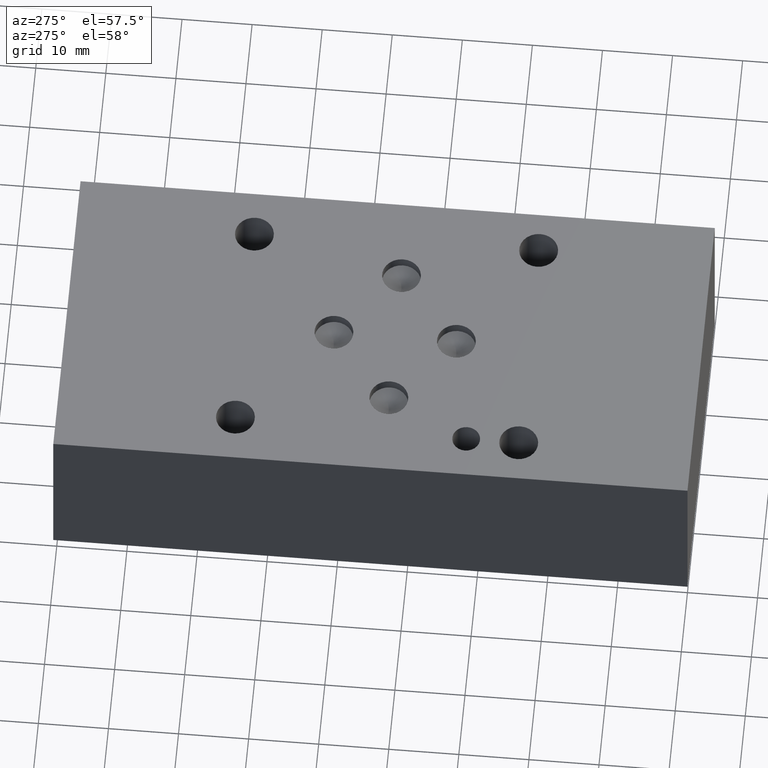
[diagram: clean part render]
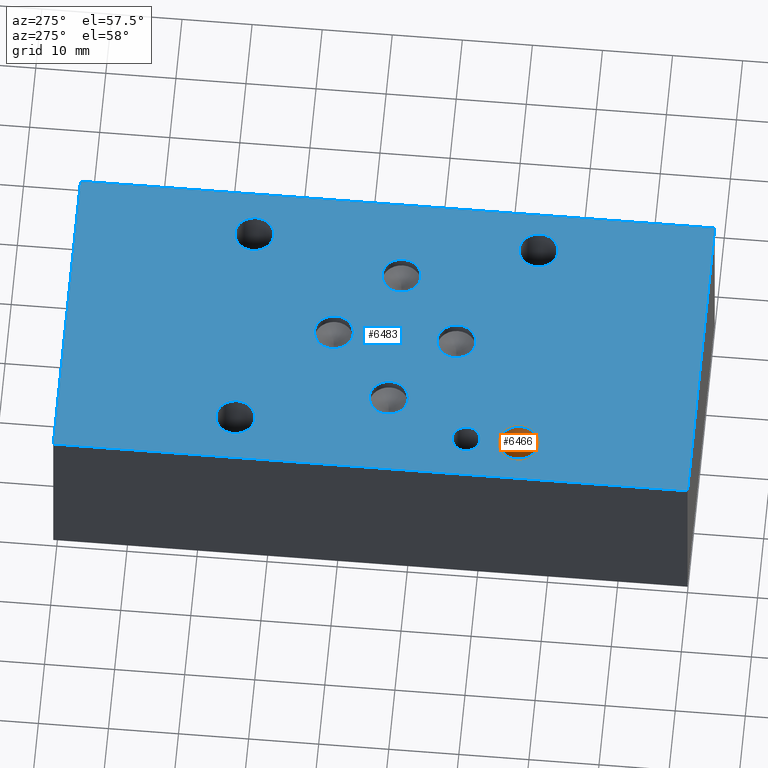
[diagram: same view with the hole feature highlighted: cylindrical wall and planar end face, labeled with their STEP entity ids]
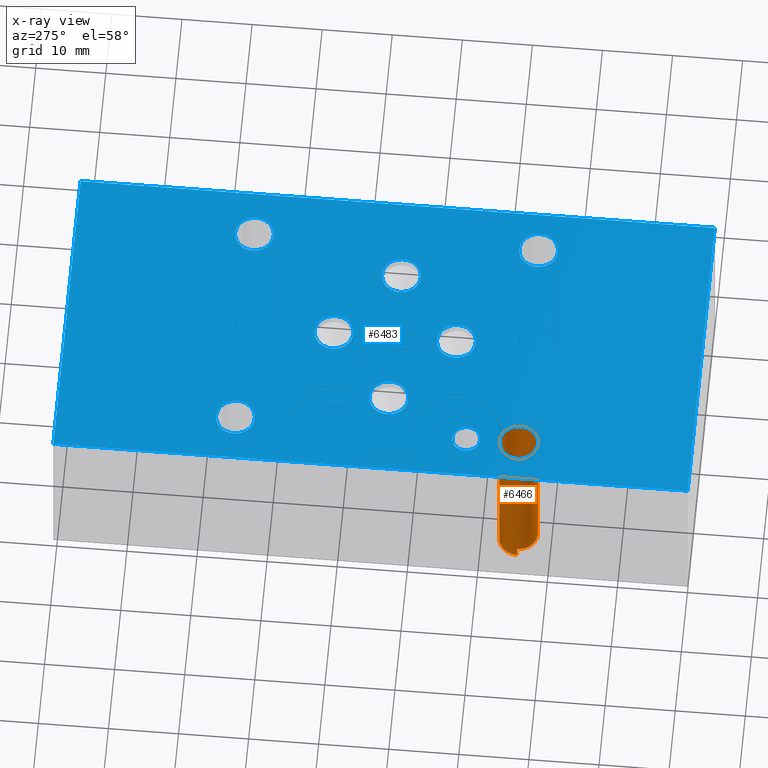
[diagram: x-ray of the same camera — body ghosted, the hole faces saturated]
A machine part, auxiliary view. The highlighted faces form one hole feature of diameter 5.5372 mm: the cylindrical wall (entity #6466, orange) and its adjacent planar end face (entity #6483, blue) — they share a circular edge in the B-rep.
The next image is the same camera in x-ray (body ghosted, the hole faces saturated) — the bore reads through the body.
Wall:
#54=CIRCLE('',#6753,2.7686);
#59=CIRCLE('',#6764,2.7686);
#63=CIRCLE('',#6770,2.7686);
#90=CYLINDRICAL_SURFACE('',#6769,2.7686);
#671=FACE_OUTER_BOUND('',#1038,.T.);
#1038=EDGE_LOOP('',(#5710,#5711,#5712,#5713,#5714,#5715,#5716,#5717));
#1707=LINE('',#10848,#2377);
#1708=LINE('',#10854,#2378);
#1717=LINE('',#10908,#2387);
#2377=VECTOR('',#7946,10.);
#2378=VECTOR('',#7951,10.);
#2387=VECTOR('',#7994,2.7686);
#2566=B_SPLINE_CURVE_WITH_KNOTS('',3,(#10857,#10858,#10859,#10860,#10861,
#10862,#10863,#10864,#10865,#10866,#10867,#10868,#10869,#10870,#10871,#10872,
#10873,#10874,#10875,#10876),.UNSPECIFIED.,.F.,.F.,(4,2,2,2,2,2,2,2,2,4),
(0.,0.104196215321337,0.208392430642673,0.312456533318024,0.416520635993375,
0.520584738668725,0.624648841344076,0.728845056665413,0.833041271986749,
0.833358708532308),.UNSPECIFIED.);
#3125=VERTEX_POINT('',#10846);
#3126=VERTEX_POINT('',#10847);
#3127=VERTEX_POINT('',#10849);
#3128=VERTEX_POINT('',#10851);
#3129=VERTEX_POINT('',#10853);
#3137=VERTEX_POINT('',#10906);
#3985=EDGE_CURVE('',#3125,#3126,#1707,.T.);
#3987=EDGE_CURVE('',#3128,#3127,#54,.T.);
#3988=EDGE_CURVE('',#3129,#3128,#1708,.T.);
#3990=EDGE_CURVE('',#3127,#3125,#2566,.T.);
#4001=EDGE_CURVE('',#3129,#3126,#59,.T.);
#4006=EDGE_CURVE('',#3137,#3137,#63,.T.);
#4007=EDGE_CURVE('',#3137,#3126,#1717,.T.);
#5710=ORIENTED_EDGE('',*,*,#4006,.F.);
#5711=ORIENTED_EDGE('',*,*,#4007,.T.);
#5712=ORIENTED_EDGE('',*,*,#4001,.F.);
#5713=ORIENTED_EDGE('',*,*,#3988,.T.);
#5714=ORIENTED_EDGE('',*,*,#3987,.T.);
#5715=ORIENTED_EDGE('',*,*,#3990,.T.);
#5716=ORIENTED_EDGE('',*,*,#3985,.T.);
#5717=ORIENTED_EDGE('',*,*,#4007,.F.);
#6466=ADVANCED_FACE('',(#671),#90,.F.);
#6753=AXIS2_PLACEMENT_3D('',#10852,#7949,#7950);
#6764=AXIS2_PLACEMENT_3D('',#10898,#7979,#7980);
#6769=AXIS2_PLACEMENT_3D('',#10905,#7990,#7991);
#6770=AXIS2_PLACEMENT_3D('',#10907,#7992,#7993);
#7946=DIRECTION('',(0.,0.,-1.));
#7949=DIRECTION('center_axis',(0.,0.,-1.));
#7950=DIRECTION('ref_axis',(1.,0.,0.));
#7951=DIRECTION('',(0.,0.,1.));
#7979=DIRECTION('center_axis',(0.,0.,1.));
#7980=DIRECTION('ref_axis',(1.,0.,0.));
#7990=DIRECTION('center_axis',(0.,0.,1.));
#7991=DIRECTION('ref_axis',(1.,0.,0.));
#7992=DIRECTION('center_axis',(0.,0.,-1.));
#7993=DIRECTION('ref_axis',(1.,0.,0.));
#7994=DIRECTION('',(0.,0.,-1.));
#10846=CARTESIAN_POINT('',(3.20040182052812,24.609425,1.59845));
#10847=CARTESIAN_POINT('',(3.20040455130474,24.611012491649,0.));
#10848=CARTESIAN_POINT('',(3.20040182052812,24.609425,0.799225000000002));
#10849=CARTESIAN_POINT('',(8.73759271788033,24.60625,1.59845420433375));
#10851=CARTESIAN_POINT('',(8.73759817947188,24.609425,1.59845));
#10852=CARTESIAN_POINT('Origin',(5.969,24.60625,1.59845));
#10853=CARTESIAN_POINT('',(8.73759544869526,24.607837508351,0.));
#10854=CARTESIAN_POINT('',(8.73759817947188,24.609425,0.799225000000002));
#10857=CARTESIAN_POINT('Ctrl Pts',(8.73759271788033,24.60625,1.59845420433375));
#10858=CARTESIAN_POINT('Ctrl Pts',(8.73679611142799,24.258930500316,1.59891412528345));
#10859=CARTESIAN_POINT('Ctrl Pts',(8.66659561451503,23.8885983368136,1.5994047385505));
#10860=CARTESIAN_POINT('Ctrl Pts',(8.38295189556874,23.2075958172206,1.60030731455487));
#10861=CARTESIAN_POINT('Ctrl Pts',(8.16950867173841,22.8969254618634,1.60071926594772));
#10862=CARTESIAN_POINT('Ctrl Pts',(7.677839069254,22.4068482320679,1.60136928022029));
#10863=CARTESIAN_POINT('Ctrl Pts',(7.36691239853523,22.1946008286456,1.60165089900502));
#10864=CARTESIAN_POINT('Ctrl Pts',(6.68593303541129,21.9131767117058,1.60202435168423));
#10865=CARTESIAN_POINT('Ctrl Pts',(6.31588034225117,21.844,1.60211617420935));
#10866=CARTESIAN_POINT('Ctrl Pts',(5.62211965774883,21.844,1.60211617420935));
#10867=CARTESIAN_POINT('Ctrl Pts',(5.25206696458871,21.9131767117058,1.60202435168422));
#10868=CARTESIAN_POINT('Ctrl Pts',(4.57108760146477,22.1946008286456,1.60165089900501));
#10869=CARTESIAN_POINT('Ctrl Pts',(4.260160930746,22.4068482320679,1.60136928022029));
#10870=CARTESIAN_POINT('Ctrl Pts',(3.76849132826159,22.8969254618634,1.60071926594772));
#10871=CARTESIAN_POINT('Ctrl Pts',(3.55504810443126,23.2075958172206,1.60030731455487));
#10872=CARTESIAN_POINT('Ctrl Pts',(3.27140438548497,23.8885983368136,1.5994047385505));
#10873=CARTESIAN_POINT('Ctrl Pts',(3.20120388857202,24.258930500316,1.59891412528345));
#10874=CARTESIAN_POINT('Ctrl Pts',(3.20040485523689,24.6073081181077,1.59845280317233));
#10875=CARTESIAN_POINT('Ctrl Pts',(3.20040303446018,24.60836645194,1.59845140172708));
#10876=CARTESIAN_POINT('Ctrl Pts',(3.20040182052812,24.609425,1.59845));
#10898=CARTESIAN_POINT('Origin',(5.969,24.6126,0.));
#10905=CARTESIAN_POINT('Origin',(5.969,24.6126,-78.5771547025596));
#10906=CARTESIAN_POINT('',(3.2004,24.6126,25.4));
#10907=CARTESIAN_POINT('Origin',(5.969,24.6126,25.4));
#10908=CARTESIAN_POINT('',(3.2004,24.6126,-78.5771547025596));
End face:
#62=CIRCLE('',#6768,2.7686);
#63=CIRCLE('',#6770,2.7686);
#64=CIRCLE('',#6772,2.7686);
#65=CIRCLE('',#6774,2.7686);
#67=CIRCLE('',#6778,2.7686);
#69=CIRCLE('',#6782,2.7686);
#71=CIRCLE('',#6786,2.7686);
#73=CIRCLE('',#6790,2.7686);
#75=CIRCLE('',#6794,1.9812);
#135=FACE_BOUND('',#1056,.T.);
#136=FACE_BOUND('',#1057,.T.);
#137=FACE_BOUND('',#1058,.T.);
#138=FACE_BOUND('',#1059,.T.);
#139=FACE_BOUND('',#1060,.T.);
#140=FACE_BOUND('',#1061,.T.);
#141=FACE_BOUND('',#1062,.T.);
#142=FACE_BOUND('',#1063,.T.);
#143=FACE_BOUND('',#1064,.T.);
#358=PLANE('',#6799);
#688=FACE_OUTER_BOUND('',#1055,.T.);
#1055=EDGE_LOOP('',(#5784,#5785,#5786,#5787));
#1056=EDGE_LOOP('',(#5788));
#1057=EDGE_LOOP('',(#5789));
#1058=EDGE_LOOP('',(#5790));
#1059=EDGE_LOOP('',(#5791));
#1060=EDGE_LOOP('',(#5792));
#1061=EDGE_LOOP('',(#5793));
#1062=EDGE_LOOP('',(#5794));
#1063=EDGE_LOOP('',(#5795));
#1064=EDGE_LOOP('',(#5796));
#1312=LINE('',#9783,#1982);
#1731=LINE('',#10966,#2401);
#1733=LINE('',#10969,#2403);
#1734=LINE('',#10972,#2404);
#1982=VECTOR('',#7183,10.);
#2401=VECTOR('',#8058,10.);
#2403=VECTOR('',#8062,10.);
#2404=VECTOR('',#8067,10.);
#2827=VERTEX_POINT('',#9780);
#2828=VERTEX_POINT('',#9782);
#3136=VERTEX_POINT('',#10902);
#3137=VERTEX_POINT('',#10906);
#3138=VERTEX_POINT('',#10910);
#3139=VERTEX_POINT('',#10914);
#3142=VERTEX_POINT('',#10923);
#3145=VERTEX_POINT('',#10932);
#3148=VERTEX_POINT('',#10941);
#3151=VERTEX_POINT('',#10950);
#3154=VERTEX_POINT('',#10959);
#3155=VERTEX_POINT('',#10963);
#3156=VERTEX_POINT('',#10965);
#3546=EDGE_CURVE('',#2828,#2827,#1312,.T.);
#4004=EDGE_CURVE('',#3136,#3136,#62,.T.);
#4006=EDGE_CURVE('',#3137,#3137,#63,.T.);
#4008=EDGE_CURVE('',#3138,#3138,#64,.T.);
#4010=EDGE_CURVE('',#3139,#3139,#65,.T.);
#4014=EDGE_CURVE('',#3142,#3142,#67,.T.);
#4018=EDGE_CURVE('',#3145,#3145,#69,.T.);
#4022=EDGE_CURVE('',#3148,#3148,#71,.T.);
#4026=EDGE_CURVE('',#3151,#3151,#73,.T.);
#4030=EDGE_CURVE('',#3154,#3154,#75,.T.);
#4033=EDGE_CURVE('',#3156,#3155,#1731,.T.);
#4035=EDGE_CURVE('',#2827,#3156,#1733,.T.);
#4036=EDGE_CURVE('',#3155,#2828,#1734,.T.);
#5784=ORIENTED_EDGE('',*,*,#4036,.T.);
#5785=ORIENTED_EDGE('',*,*,#3546,.T.);
#5786=ORIENTED_EDGE('',*,*,#4035,.T.);
#5787=ORIENTED_EDGE('',*,*,#4033,.T.);
#5788=ORIENTED_EDGE('',*,*,#4004,.T.);
#5789=ORIENTED_EDGE('',*,*,#4006,.T.);
#5790=ORIENTED_EDGE('',*,*,#4008,.T.);
#5791=ORIENTED_EDGE('',*,*,#4010,.T.);
#5792=ORIENTED_EDGE('',*,*,#4014,.T.);
#5793=ORIENTED_EDGE('',*,*,#4018,.T.);
#5794=ORIENTED_EDGE('',*,*,#4022,.T.);
#5795=ORIENTED_EDGE('',*,*,#4026,.T.);
#5796=ORIENTED_EDGE('',*,*,#4030,.T.);
#6483=ADVANCED_FACE('',(#688,#135,#136,#137,#138,#139,#140,#141,#142,#143),
#358,.T.);
#6768=AXIS2_PLACEMENT_3D('',#10903,#7987,#7988);
#6770=AXIS2_PLACEMENT_3D('',#10907,#7992,#7993);
#6772=AXIS2_PLACEMENT_3D('',#10911,#7997,#7998);
#6774=AXIS2_PLACEMENT_3D('',#10915,#8002,#8003);
#6778=AXIS2_PLACEMENT_3D('',#10924,#8012,#8013);
#6782=AXIS2_PLACEMENT_3D('',#10933,#8022,#8023);
#6786=AXIS2_PLACEMENT_3D('',#10942,#8032,#8033);
#6790=AXIS2_PLACEMENT_3D('',#10951,#8042,#8043);
#6794=AXIS2_PLACEMENT_3D('',#10960,#8052,#8053);
#6799=AXIS2_PLACEMENT_3D('',#10973,#8068,#8069);
#7183=DIRECTION('',(0.,1.,0.));
#7987=DIRECTION('center_axis',(0.,0.,-1.));
#7988=DIRECTION('ref_axis',(1.,0.,0.));
#7992=DIRECTION('center_axis',(0.,0.,-1.));
#7993=DIRECTION('ref_axis',(1.,0.,0.));
#7997=DIRECTION('center_axis',(0.,0.,-1.));
#7998=DIRECTION('ref_axis',(1.,0.,0.));
#8002=DIRECTION('center_axis',(0.,0.,-1.));
#8003=DIRECTION('ref_axis',(1.,0.,0.));
#8012=DIRECTION('center_axis',(0.,0.,-1.));
#8013=DIRECTION('ref_axis',(1.,0.,0.));
#8022=DIRECTION('center_axis',(0.,0.,-1.));
#8023=DIRECTION('ref_axis',(1.,0.,0.));
#8032=DIRECTION('center_axis',(0.,0.,-1.));
#8033=DIRECTION('ref_axis',(1.,0.,0.));
#8042=DIRECTION('center_axis',(0.,0.,-1.));
#8043=DIRECTION('ref_axis',(1.,0.,0.));
#8052=DIRECTION('center_axis',(0.,0.,-1.));
#8053=DIRECTION('ref_axis',(1.,0.,0.));
#8058=DIRECTION('',(0.,-1.,0.));
#8062=DIRECTION('',(-1.,0.,0.));
#8067=DIRECTION('',(1.,0.,0.));
#8068=DIRECTION('center_axis',(0.,0.,1.));
#8069=DIRECTION('ref_axis',(1.,0.,0.));
#9780=CARTESIAN_POINT('',(44.45,90.5002,25.4));
#9782=CARTESIAN_POINT('',(44.45,0.,25.4));
#9783=CARTESIAN_POINT('',(44.45,0.,25.4));
#10902=CARTESIAN_POINT('',(3.9878,65.1002,25.4));
#10903=CARTESIAN_POINT('Origin',(6.7564,65.1002,25.4));
#10906=CARTESIAN_POINT('',(3.2004,24.6126,25.4));
#10907=CARTESIAN_POINT('Origin',(5.969,24.6126,25.4));
#10910=CARTESIAN_POINT('',(35.7378,24.6126,25.4));
#10911=CARTESIAN_POINT('Origin',(38.5064,24.6126,25.4));
#10914=CARTESIAN_POINT('',(34.9504,65.1002,25.4));
#10915=CARTESIAN_POINT('Origin',(37.719,65.1002,25.4));
#10923=CARTESIAN_POINT('',(19.4564,52.4002,25.4));
#10924=CARTESIAN_POINT('Origin',(22.225,52.4002,25.4));
#10932=CARTESIAN_POINT('',(9.144,43.6626,25.4));
#10933=CARTESIAN_POINT('Origin',(11.9126,43.6626,25.4));
#10941=CARTESIAN_POINT('',(29.7942,43.6626,25.4));
#10942=CARTESIAN_POINT('Origin',(32.5628,43.6626,25.4));
#10950=CARTESIAN_POINT('',(19.4564,34.925,25.4));
#10951=CARTESIAN_POINT('Origin',(22.225,34.925,25.4));
#10959=CARTESIAN_POINT('',(3.9878,32.1056,25.4));
#10960=CARTESIAN_POINT('Origin',(5.969,32.1056,25.4));
#10963=CARTESIAN_POINT('',(0.,0.,25.4));
#10965=CARTESIAN_POINT('',(0.,90.5002,25.4));
#10966=CARTESIAN_POINT('',(0.,90.5002,25.4));
#10969=CARTESIAN_POINT('',(44.45,90.5002,25.4));
#10972=CARTESIAN_POINT('',(0.,0.,25.4));
#10973=CARTESIAN_POINT('Origin',(22.225,45.2501,25.4));